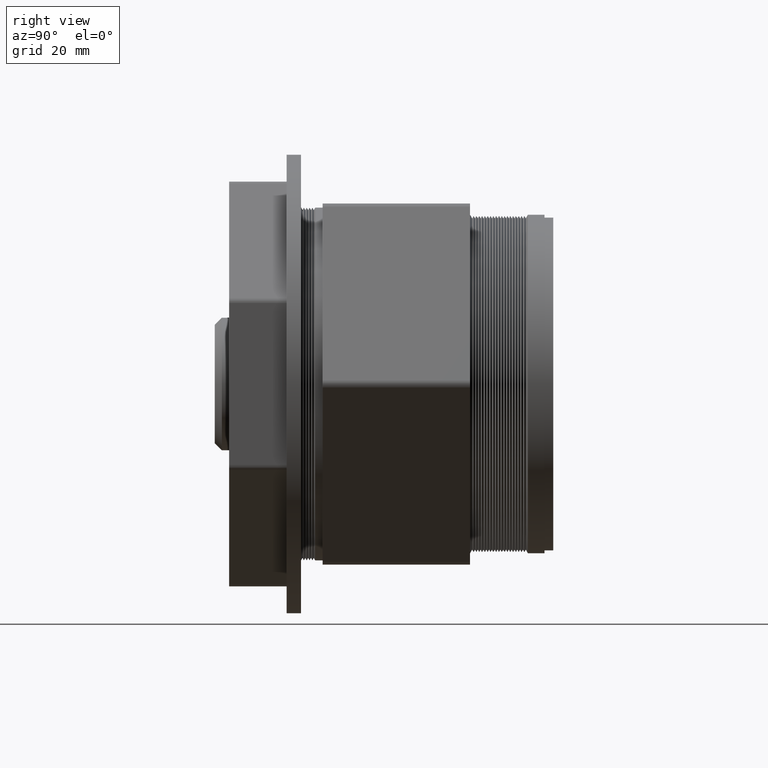
[diagram: clean part render]
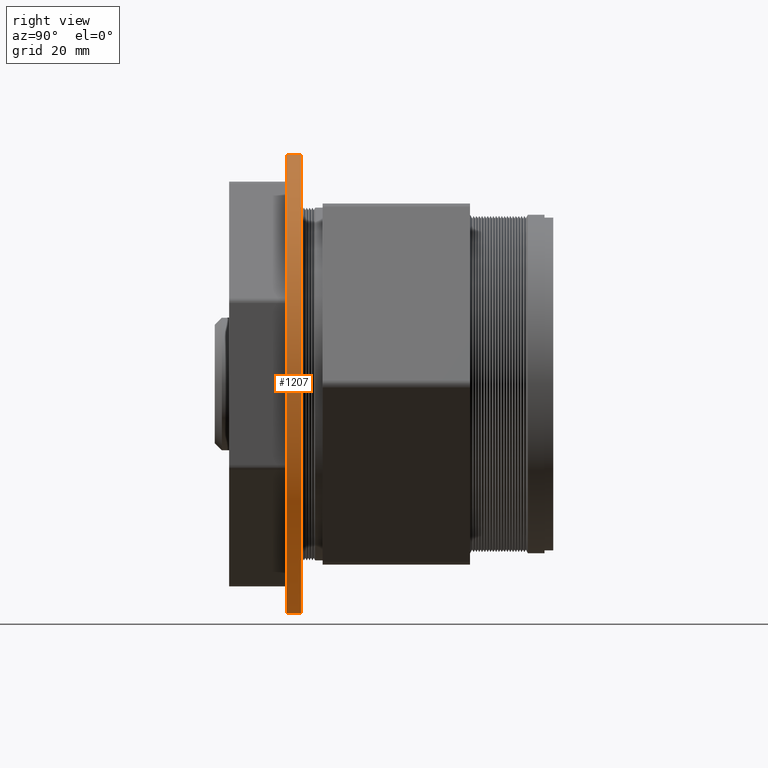
[diagram: same view with one face highlighted and labeled with its STEP entity id]
A machine part, right view. The second image highlights one B-rep face of the part: STEP entity #1207.
In plain terms, the highlighted cylindrical surface (partial cylindrical patch) has radius 41.275 mm, axis along (-0, 1, -0).
Its self-contained STEP definition (entity closure, byte-faithful):
#1190 = ORIENTED_EDGE ( 'NONE', *, *, #1275, .T. ) ;
#1192 = EDGE_CURVE ( 'NONE', #1198, #1211, #2598, .T. ) ;
#1197 = EDGE_LOOP ( 'NONE', ( #1190, #1279, #1215, #1203 ) ) ;
#1198 = VERTEX_POINT ( 'NONE', #2706 ) ;
#1203 = ORIENTED_EDGE ( 'NONE', *, *, #1192, .F. ) ;
#1207 = ADVANCED_FACE ( 'NONE', ( #2696 ), #2695, .T. ) ;
#1210 = VERTEX_POINT ( 'NONE', #2684 ) ;
#1211 = VERTEX_POINT ( 'NONE', #2683 ) ;
#1215 = ORIENTED_EDGE ( 'NONE', *, *, #1216, .F. ) ;
#1216 = EDGE_CURVE ( 'NONE', #1211, #1210, #2725, .T. ) ;
#1275 = EDGE_CURVE ( 'NONE', #1198, #1278, #3069, .T. ) ;
#1278 = VERTEX_POINT ( 'NONE', #3050 ) ;
#1279 = ORIENTED_EDGE ( 'NONE', *, *, #1280, .T. ) ;
#1280 = EDGE_CURVE ( 'NONE', #1278, #1210, #3019, .T. ) ;
#2595 = DIRECTION ( 'NONE',  ( -0.0000000000000000000, 1.000000000000000000, -0.0000000000000000000 ) ) ;
#2596 = VECTOR ( 'NONE', #2595, 39.37007874015748100 ) ;
#2597 = CARTESIAN_POINT ( 'NONE',  ( 0.0000000000000000000, 2.259507931487918500, 1.624999999999999800 ) ) ;
#2598 = LINE ( 'NONE', #2597, #2596 ) ;
#2683 = CARTESIAN_POINT ( 'NONE',  ( 0.0000000000000000000, 0.6119999999999998800, 1.624999999999999800 ) ) ;
#2684 = CARTESIAN_POINT ( 'NONE',  ( 1.990051048614448400E-016, 0.6119999999999998800, -1.624999999999999800 ) ) ;
#2690 = DIRECTION ( 'NONE',  ( 0.0000000000000000000, 0.0000000000000000000, 1.000000000000000000 ) ) ;
#2691 = DIRECTION ( 'NONE',  ( -0.0000000000000000000, 1.000000000000000000, -0.0000000000000000000 ) ) ;
#2692 = CARTESIAN_POINT ( 'NONE',  ( 0.0000000000000000000, 2.259507931487918500, 0.0000000000000000000 ) ) ;
#2693 = AXIS2_PLACEMENT_3D ( 'NONE', #2692, #2691, #2690 ) ;
#2695 = CYLINDRICAL_SURFACE ( 'NONE', #2693, 1.624999999999999800 ) ;
#2696 = FACE_OUTER_BOUND ( 'NONE', #1197, .T. ) ;
#2706 = CARTESIAN_POINT ( 'NONE',  ( 0.0000000000000000000, 0.5100000000000000100, 1.624999999999999800 ) ) ;
#2721 = DIRECTION ( 'NONE',  ( 0.0000000000000000000, 0.0000000000000000000, 1.000000000000000000 ) ) ;
#2722 = DIRECTION ( 'NONE',  ( -0.0000000000000000000, 1.000000000000000000, -0.0000000000000000000 ) ) ;
#2723 = CARTESIAN_POINT ( 'NONE',  ( 0.0000000000000000000, 0.6119999999999998800, 0.0000000000000000000 ) ) ;
#2724 = AXIS2_PLACEMENT_3D ( 'NONE', #2723, #2722, #2721 ) ;
#2725 = CIRCLE ( 'NONE', #2724, 1.624999999999999800 ) ;
#3016 = DIRECTION ( 'NONE',  ( -0.0000000000000000000, 1.000000000000000000, -0.0000000000000000000 ) ) ;
#3017 = VECTOR ( 'NONE', #3016, 39.37007874015748100 ) ;
#3018 = CARTESIAN_POINT ( 'NONE',  ( 1.990051048614448400E-016, 2.259507931487918500, -1.624999999999999800 ) ) ;
#3019 = LINE ( 'NONE', #3018, #3017 ) ;
#3050 = CARTESIAN_POINT ( 'NONE',  ( 1.990051048614448400E-016, 0.5100000000000000100, -1.624999999999999800 ) ) ;
#3062 = DIRECTION ( 'NONE',  ( 0.0000000000000000000, 0.0000000000000000000, -1.000000000000000000 ) ) ;
#3063 = DIRECTION ( 'NONE',  ( -0.0000000000000000000, 1.000000000000000000, -0.0000000000000000000 ) ) ;
#3064 = CARTESIAN_POINT ( 'NONE',  ( 0.0000000000000000000, 0.5100000000000000100, 0.0000000000000000000 ) ) ;
#3065 = AXIS2_PLACEMENT_3D ( 'NONE', #3064, #3063, #3062 ) ;
#3069 = CIRCLE ( 'NONE', #3065, 1.624999999999999800 ) ;